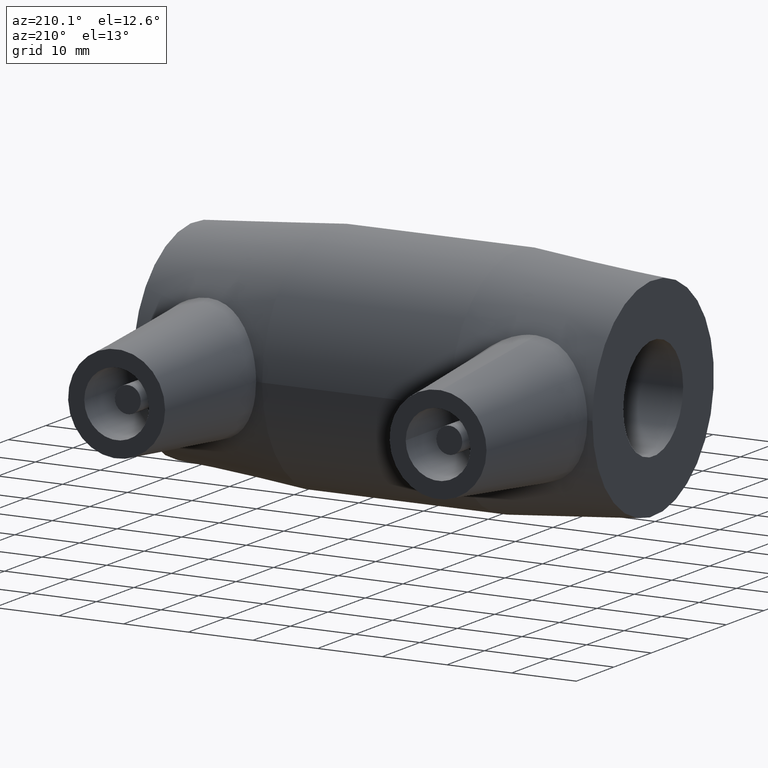
[diagram: clean part render]
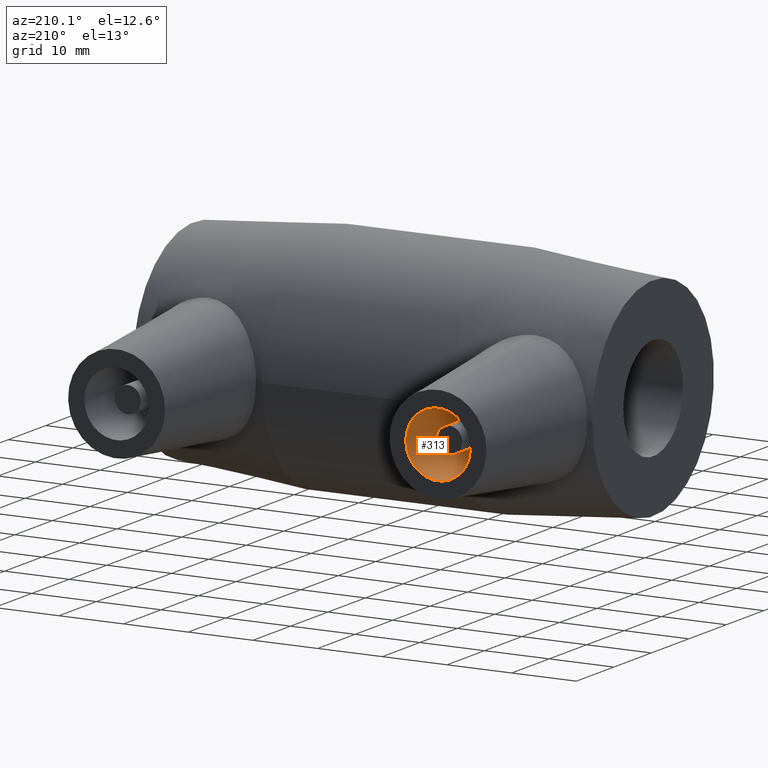
[diagram: same view with one face highlighted and labeled with its STEP entity id]
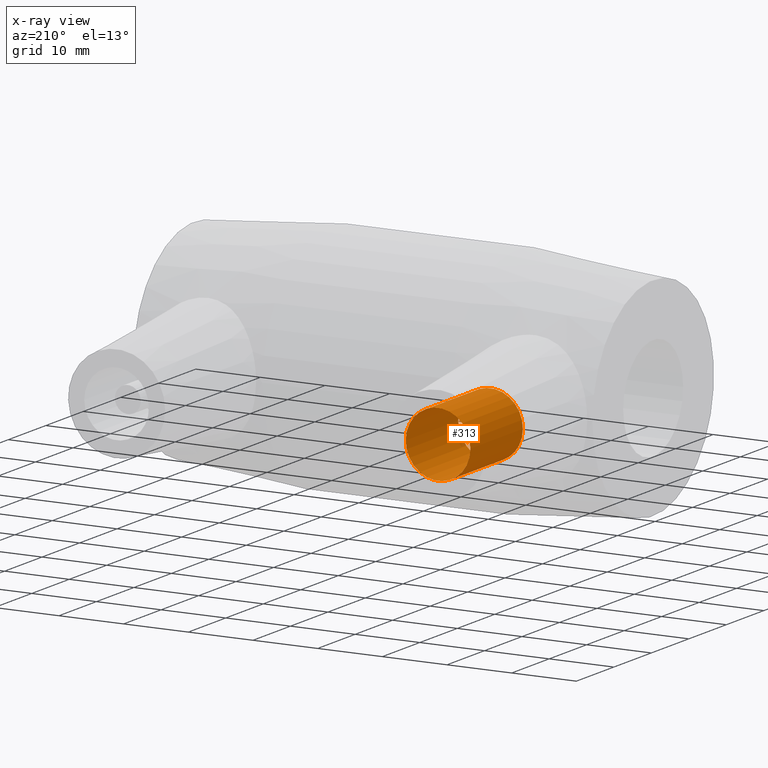
[diagram: x-ray of the same camera — body ghosted, the highlighted face saturated]
A machine part, auxiliary view. The second image highlights one B-rep face of the part: STEP entity #313.
The next image is the same camera in x-ray: the body ghosted, the highlighted face saturated — about 1% of this face is hidden behind the body in this view.
In plain terms, the highlighted cylindrical surface (bore or boss wall) has radius 5 mm, axis along (0, -1, 0).
Its self-contained STEP definition (entity closure, byte-faithful):
#30=FACE_BOUND('',#107,.T.);
#56=CYLINDRICAL_SURFACE('',#351,5.);
#71=FACE_OUTER_BOUND('',#106,.T.);
#106=EDGE_LOOP('',(#249));
#107=EDGE_LOOP('',(#250));
#157=CIRCLE('',#352,5.);
#158=CIRCLE('',#353,5.);
#185=VERTEX_POINT('',#569);
#186=VERTEX_POINT('',#571);
#214=EDGE_CURVE('',#185,#185,#157,.T.);
#215=EDGE_CURVE('',#186,#186,#158,.T.);
#249=ORIENTED_EDGE('',*,*,#214,.T.);
#250=ORIENTED_EDGE('',*,*,#215,.F.);
#313=ADVANCED_FACE('',(#71,#30),#56,.F.);
#351=AXIS2_PLACEMENT_3D('',#568,#424,#425);
#352=AXIS2_PLACEMENT_3D('',#570,#426,#427);
#353=AXIS2_PLACEMENT_3D('',#572,#428,#429);
#424=DIRECTION('center_axis',(0.,-1.,0.));
#425=DIRECTION('ref_axis',(-1.,0.,0.));
#426=DIRECTION('center_axis',(0.,-1.,0.));
#427=DIRECTION('ref_axis',(-1.,0.,0.));
#428=DIRECTION('center_axis',(0.,-1.,0.));
#429=DIRECTION('ref_axis',(-1.,0.,0.));
#568=CARTESIAN_POINT('Origin',(-24.85,39.,0.));
#569=CARTESIAN_POINT('',(-19.85,25.,-6.12323399573677E-16));
#570=CARTESIAN_POINT('Origin',(-24.85,25.,0.));
#571=CARTESIAN_POINT('',(-19.85,39.,-6.12323399573677E-16));
#572=CARTESIAN_POINT('Origin',(-24.85,39.,0.));